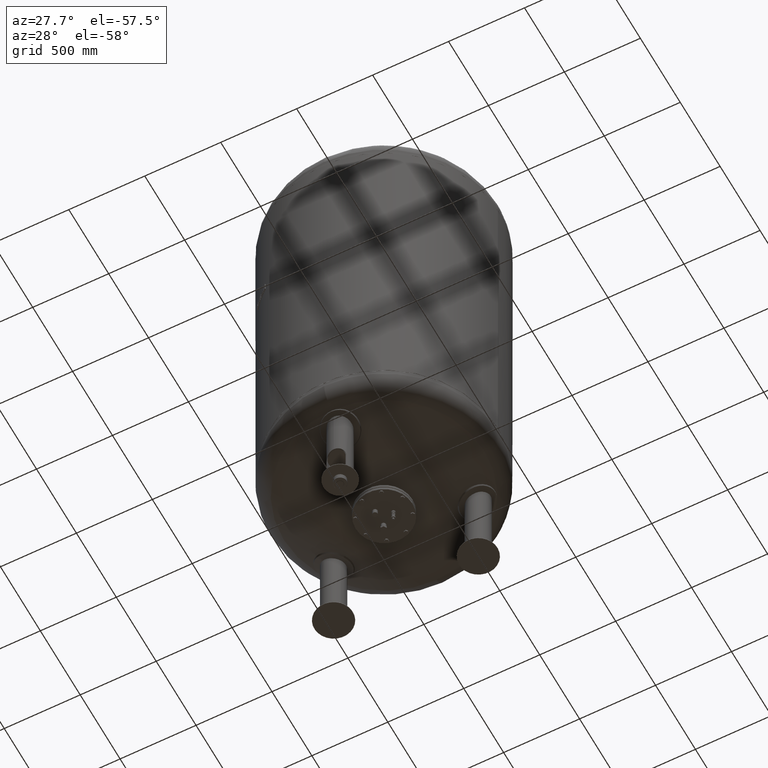
[diagram: clean part render]
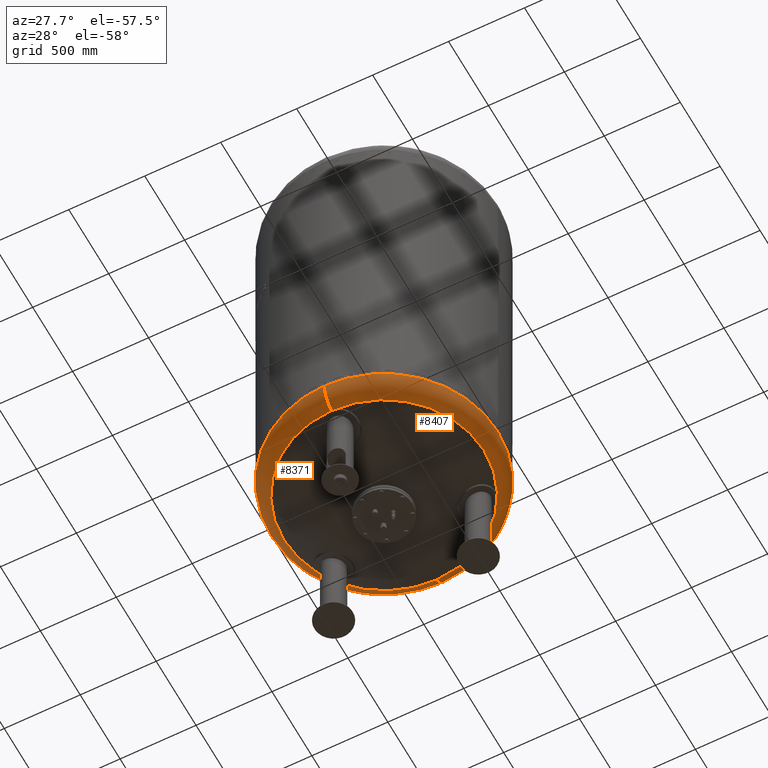
[diagram: same view with one multi-face feature highlighted, each face labeled with its STEP entity id]
A machine part, auxiliary view. The highlighted faces form ONE feature: a constant-radius fillet chain: 2 tangent blend faces with common blend radius 159 mm. The faces share edges in the B-rep.
Their STEP definitions:
[1] entity #8407 (Torus):
#8293=CARTESIAN_POINT('',(750.0,3.761120E-014,785.237667415898160));
#8294=VERTEX_POINT('',#8293);
#8301=CARTESIAN_POINT('',(-1.628998E-013,750.0,785.237667415898270));
#8302=VERTEX_POINT('',#8301);
#8303=CARTESIAN_POINT('',(-5.075605E-014,-5.423428E-014,785.237667415898160));
#8304=DIRECTION('',(0.0,0.0,1.0));
#8305=DIRECTION('',(-1.0,0.0,0.0));
#8306=AXIS2_PLACEMENT_3D('',#8303,#8304,#8305);
#8307=CIRCLE('',#8306,750.0);
#8308=EDGE_CURVE('',#8294,#8302,#8307,.T.);
#8325=CARTESIAN_POINT('',(-7.105427E-014,-750.0,785.237667415898040));
#8326=VERTEX_POINT('',#8325);
#8327=CARTESIAN_POINT('',(-4.647817E-014,-660.606666666666800,642.283437133770350));
#8328=VERTEX_POINT('',#8327);
#8329=CARTESIAN_POINT('',(-7.105427E-014,-591.0,785.237667415898040));
#8330=DIRECTION('',(1.0,0.0,0.0));
#8331=DIRECTION('',(0.0,-1.0,0.0));
#8332=AXIS2_PLACEMENT_3D('',#8329,#8330,#8331);
#8333=CIRCLE('',#8332,159.0);
#8334=EDGE_CURVE('',#8326,#8328,#8333,.T.);
#8344=CARTESIAN_POINT('',(-1.273765E-013,660.606666666666800,642.283437133770800));
#8345=VERTEX_POINT('',#8344);
#8346=CARTESIAN_POINT('',(-1.434285E-013,591.0,785.237667415898270));
#8347=DIRECTION('',(-1.0,0.0,0.0));
#8348=DIRECTION('',(0.0,1.0,0.0));
#8349=AXIS2_PLACEMENT_3D('',#8346,#8347,#8348);
#8350=CIRCLE('',#8349,159.0);
#8351=EDGE_CURVE('',#8302,#8345,#8350,.T.);
#8379=CARTESIAN_POINT('',(-2.617994E-014,-2.797401E-014,642.283437133770580));
#8380=DIRECTION('',(0.0,0.0,1.0));
#8381=DIRECTION('',(-1.0,0.0,0.0));
#8382=AXIS2_PLACEMENT_3D('',#8379,#8380,#8381);
#8383=CIRCLE('',#8382,660.606666666666800);
#8384=EDGE_CURVE('',#8328,#8345,#8383,.T.);
#8389=CARTESIAN_POINT('',(-7.105427E-014,-5.423428E-014,785.237667415898160));
#8390=DIRECTION('',(-1.719159E-016,-1.836970E-016,1.0));
#8391=DIRECTION('',(0.0,-1.0,0.0));
#8392=AXIS2_PLACEMENT_3D('',#8389,#8390,#8391);
#8393=TOROIDAL_SURFACE('',#8392,591.0,159.0);
#8394=ORIENTED_EDGE('',*,*,#8334,.T.);
#8395=ORIENTED_EDGE('',*,*,#8384,.T.);
#8396=ORIENTED_EDGE('',*,*,#8351,.F.);
#8397=ORIENTED_EDGE('',*,*,#8308,.F.);
#8398=CARTESIAN_POINT('',(-5.075605E-014,-5.423428E-014,785.237667415898160));
#8399=DIRECTION('',(0.0,0.0,1.0));
#8400=DIRECTION('',(-1.0,0.0,0.0));
#8401=AXIS2_PLACEMENT_3D('',#8398,#8399,#8400);
#8402=CIRCLE('',#8401,750.0);
#8403=EDGE_CURVE('',#8326,#8294,#8402,.T.);
#8404=ORIENTED_EDGE('',*,*,#8403,.F.);
#8405=EDGE_LOOP('',(#8394,#8395,#8396,#8397,#8404));
#8406=FACE_OUTER_BOUND('',#8405,.T.);
#8407=ADVANCED_FACE('',(#8406),#8393,.T.);
[2] entity #8371 (Torus):
#8276=CARTESIAN_POINT('',(-750.0,-5.423428E-014,785.237667415897930));
#8277=VERTEX_POINT('',#8276);
#8301=CARTESIAN_POINT('',(-1.628998E-013,750.0,785.237667415898270));
#8302=VERTEX_POINT('',#8301);
#8310=CARTESIAN_POINT('',(-5.075605E-014,-5.423428E-014,785.237667415898160));
#8311=DIRECTION('',(0.0,0.0,1.0));
#8312=DIRECTION('',(-1.0,0.0,0.0));
#8313=AXIS2_PLACEMENT_3D('',#8310,#8311,#8312);
#8314=CIRCLE('',#8313,750.0);
#8315=EDGE_CURVE('',#8302,#8277,#8314,.T.);
#8320=CARTESIAN_POINT('',(-7.105427E-014,-5.423428E-014,785.237667415898160));
#8321=DIRECTION('',(-1.719159E-016,-1.836970E-016,1.0));
#8322=DIRECTION('',(0.0,-1.0,0.0));
#8323=AXIS2_PLACEMENT_3D('',#8320,#8321,#8322);
#8324=TOROIDAL_SURFACE('',#8323,591.0,159.0);
#8325=CARTESIAN_POINT('',(-7.105427E-014,-750.0,785.237667415898040));
#8326=VERTEX_POINT('',#8325);
#8327=CARTESIAN_POINT('',(-4.647817E-014,-660.606666666666800,642.283437133770350));
#8328=VERTEX_POINT('',#8327);
#8329=CARTESIAN_POINT('',(-7.105427E-014,-591.0,785.237667415898040));
#8330=DIRECTION('',(1.0,0.0,0.0));
#8331=DIRECTION('',(0.0,-1.0,0.0));
#8332=AXIS2_PLACEMENT_3D('',#8329,#8330,#8331);
#8333=CIRCLE('',#8332,159.0);
#8334=EDGE_CURVE('',#8326,#8328,#8333,.T.);
#8335=ORIENTED_EDGE('',*,*,#8334,.F.);
#8336=CARTESIAN_POINT('',(-5.075605E-014,-5.423428E-014,785.237667415898160));
#8337=DIRECTION('',(0.0,0.0,1.0));
#8338=DIRECTION('',(-1.0,0.0,0.0));
#8339=AXIS2_PLACEMENT_3D('',#8336,#8337,#8338);
#8340=CIRCLE('',#8339,750.0);
#8341=EDGE_CURVE('',#8277,#8326,#8340,.T.);
#8342=ORIENTED_EDGE('',*,*,#8341,.F.);
#8343=ORIENTED_EDGE('',*,*,#8315,.F.);
#8344=CARTESIAN_POINT('',(-1.273765E-013,660.606666666666800,642.283437133770800));
#8345=VERTEX_POINT('',#8344);
#8346=CARTESIAN_POINT('',(-1.434285E-013,591.0,785.237667415898270));
#8347=DIRECTION('',(-1.0,0.0,0.0));
#8348=DIRECTION('',(0.0,1.0,0.0));
#8349=AXIS2_PLACEMENT_3D('',#8346,#8347,#8348);
#8350=CIRCLE('',#8349,159.0);
#8351=EDGE_CURVE('',#8302,#8345,#8350,.T.);
#8352=ORIENTED_EDGE('',*,*,#8351,.T.);
#8353=CARTESIAN_POINT('',(-660.606666666666800,-2.797401E-014,642.283437133770460));
#8354=VERTEX_POINT('',#8353);
#8355=CARTESIAN_POINT('',(-2.617994E-014,-2.797401E-014,642.283437133770580));
#8356=DIRECTION('',(0.0,0.0,1.0));
#8357=DIRECTION('',(-1.0,0.0,0.0));
#8358=AXIS2_PLACEMENT_3D('',#8355,#8356,#8357);
#8359=CIRCLE('',#8358,660.606666666666800);
#8360=EDGE_CURVE('',#8345,#8354,#8359,.T.);
#8361=ORIENTED_EDGE('',*,*,#8360,.T.);
#8362=CARTESIAN_POINT('',(-2.617994E-014,-2.797401E-014,642.283437133770580));
#8363=DIRECTION('',(0.0,0.0,1.0));
#8364=DIRECTION('',(-1.0,0.0,0.0));
#8365=AXIS2_PLACEMENT_3D('',#8362,#8363,#8364);
#8366=CIRCLE('',#8365,660.606666666666800);
#8367=EDGE_CURVE('',#8354,#8328,#8366,.T.);
#8368=ORIENTED_EDGE('',*,*,#8367,.T.);
#8369=EDGE_LOOP('',(#8335,#8342,#8343,#8352,#8361,#8368));
#8370=FACE_OUTER_BOUND('',#8369,.T.);
#8371=ADVANCED_FACE('',(#8370),#8324,.T.);